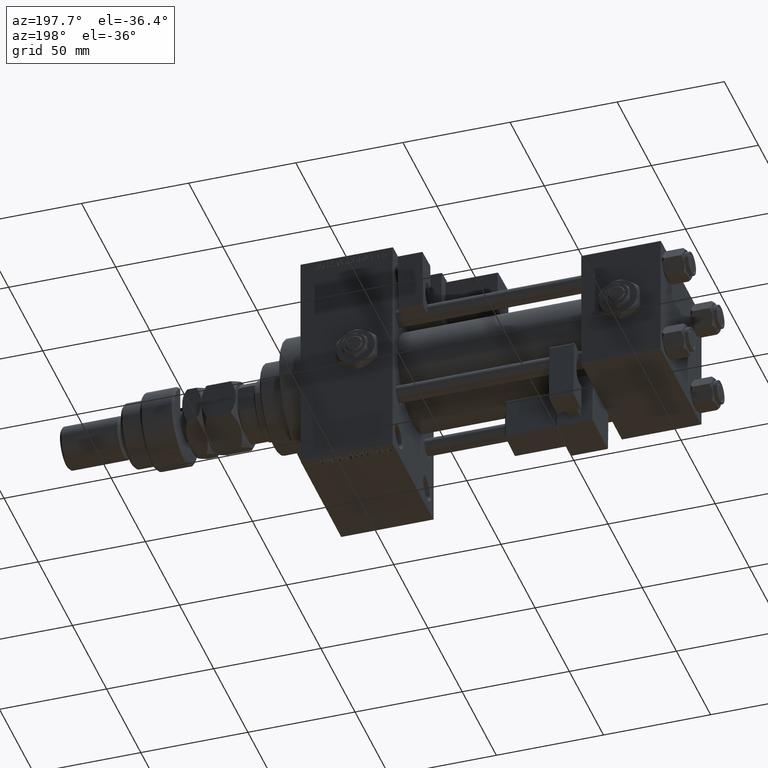
[diagram: clean part render]
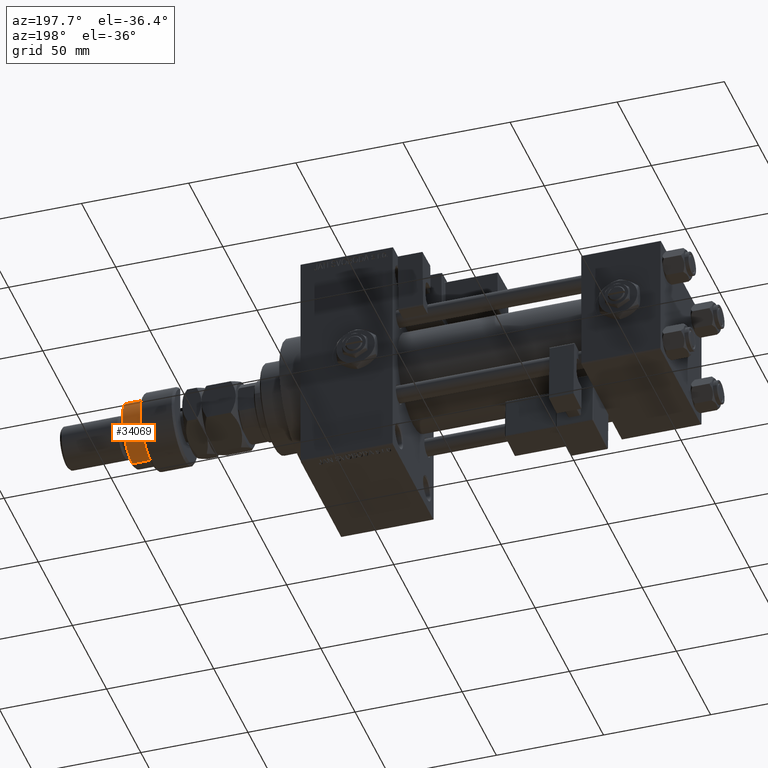
[diagram: same view with one face highlighted and labeled with its STEP entity id]
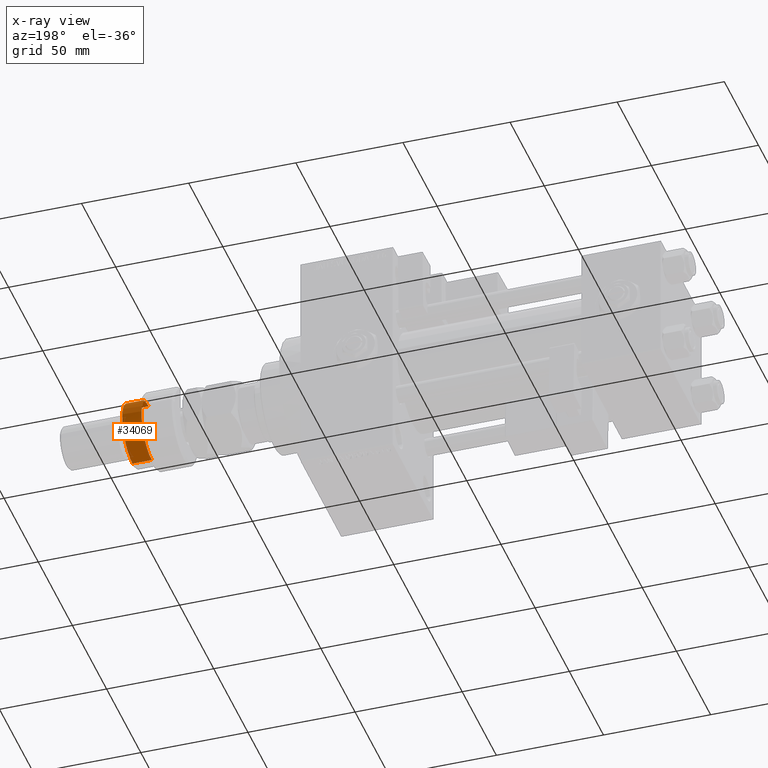
[diagram: x-ray of the same camera — body ghosted, the highlighted face saturated]
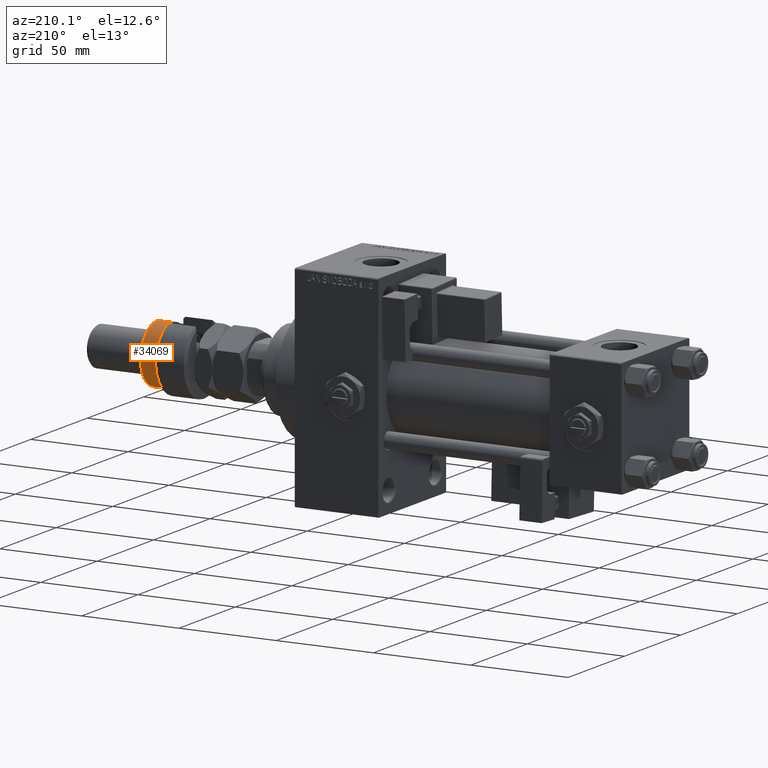
[diagram: same view with one face highlighted and labeled with its STEP entity id]
A machine part, auxiliary view. The second image highlights one B-rep face of the part: STEP entity #34069.
The next image is the same camera in x-ray: the body ghosted, the highlighted face saturated — about 0% of this face is hidden behind the body in this view.
A second angle (auxiliary view) of the same face is appended — the face is thin or edge-on in the first view.
In plain terms, the highlighted cylindrical surface (edge-blend (fillet) strip) has radius 15 mm, axis along (-1, -0, 0).
Its self-contained STEP definition (entity closure, byte-faithful):
#2290 = ORIENTED_EDGE ( 'NONE', *, *, #24684, .F. ) ;
#2796 = CARTESIAN_POINT ( 'NONE',  ( -15.00000000000000000, 0.000000000000000000, 24.99999999999997868 ) ) ;
#4188 = DIRECTION ( 'NONE',  ( 0.000000000000000000, 0.000000000000000000, -1.000000000000000000 ) ) ;
#5008 = DIRECTION ( 'NONE',  ( 1.000000000000000000, 0.000000000000000000, 0.000000000000000000 ) ) ;
#5952 = ORIENTED_EDGE ( 'NONE', *, *, #31009, .F. ) ;
#6832 = DIRECTION ( 'NONE',  ( -0.000000000000000000, -0.000000000000000000, -1.000000000000000000 ) ) ;
#8010 = VERTEX_POINT ( 'NONE', #30699 ) ;
#8079 = AXIS2_PLACEMENT_3D ( 'NONE', #45973, #41823, #37690 ) ;
#8229 = AXIS2_PLACEMENT_3D ( 'NONE', #14541, #39680, #31100 ) ;
#8839 = CIRCLE ( 'NONE', #52943, 15.00000000000000000 ) ;
#8894 = EDGE_LOOP ( 'NONE', ( #24968, #25845, #14731, #35512, #2290, #5952 ) ) ;
#9962 = DIRECTION ( 'NONE',  ( -1.000000000000000000, 0.000000000000000000, 0.000000000000000000 ) ) ;
#10195 = VERTEX_POINT ( 'NONE', #41202 ) ;
#10691 = LINE ( 'NONE', #45459, #11102 ) ;
#11102 = VECTOR ( 'NONE', #6832, 1000.000000000000000 ) ;
#12048 = DIRECTION ( 'NONE',  ( -0.000000000000000000, -0.000000000000000000, -1.000000000000000000 ) ) ;
#14333 = LINE ( 'NONE', #44432, #54096 ) ;
#14541 = CARTESIAN_POINT ( 'NONE',  ( 0.000000000000000000, 0.000000000000000000, 26.00000000000000355 ) ) ;
#14731 = ORIENTED_EDGE ( 'NONE', *, *, #43441, .T. ) ;
#15248 = CARTESIAN_POINT ( 'NONE',  ( -12.99038105676658006, 7.500000000000000000, 16.00000000000000000 ) ) ;
#15281 = VERTEX_POINT ( 'NONE', #2796 ) ;
#16200 = LINE ( 'NONE', #49889, #53112 ) ;
#16732 = CIRCLE ( 'NONE', #33474, 15.00000000000000000 ) ;
#18001 = VERTEX_POINT ( 'NONE', #19173 ) ;
#18816 = VERTEX_POINT ( 'NONE', #26965 ) ;
#19173 = CARTESIAN_POINT ( 'NONE',  ( 15.00000000000000000, 1.836970198721029589E-15, 16.00000000000000000 ) ) ;
#24684 = EDGE_CURVE ( 'NONE', #18816, #10195, #16732, .T. ) ;
#24968 = ORIENTED_EDGE ( 'NONE', *, *, #28381, .T. ) ;
#25845 = ORIENTED_EDGE ( 'NONE', *, *, #51906, .T. ) ;
#25994 = DIRECTION ( 'NONE',  ( 0.000000000000000000, 0.000000000000000000, -1.000000000000000000 ) ) ;
#26265 = CARTESIAN_POINT ( 'NONE',  ( 0.000000000000000000, 0.000000000000000000, 24.99999999999997868 ) ) ;
#26698 = FACE_OUTER_BOUND ( 'NONE', #8894, .T. ) ;
#26965 = CARTESIAN_POINT ( 'NONE',  ( -15.00000000000000000, 0.000000000000000000, 17.50000000000000000 ) ) ;
#28381 = EDGE_CURVE ( 'NONE', #15281, #8010, #8839, .T. ) ;
#30699 = CARTESIAN_POINT ( 'NONE',  ( 15.00000000000000000, 1.836970198721029589E-15, 24.99999999999997868 ) ) ;
#31009 = EDGE_CURVE ( 'NONE', #15281, #18816, #16200, .T. ) ;
#31100 = DIRECTION ( 'NONE',  ( -1.000000000000000000, 0.000000000000000000, 0.000000000000000000 ) ) ;
#33474 = AXIS2_PLACEMENT_3D ( 'NONE', #42003, #4188, #9962 ) ;
#33678 = EDGE_CURVE ( 'NONE', #41031, #10195, #14333, .T. ) ;
#34069 = ADVANCED_FACE ( 'NONE', ( #26698 ), #52126, .T. ) ;
#35512 = ORIENTED_EDGE ( 'NONE', *, *, #33678, .T. ) ;
#37690 = DIRECTION ( 'NONE',  ( 1.000000000000000000, 0.000000000000000000, 0.000000000000000000 ) ) ;
#39680 = DIRECTION ( 'NONE',  ( -0.000000000000000000, -0.000000000000000000, -1.000000000000000000 ) ) ;
#40020 = DIRECTION ( 'NONE',  ( 0.000000000000000000, 0.000000000000000000, 1.000000000000000000 ) ) ;
#41031 = VERTEX_POINT ( 'NONE', #15248 ) ;
#41202 = CARTESIAN_POINT ( 'NONE',  ( -12.99038105676658006, 7.500000000000000000, 17.50000000000000000 ) ) ;
#41823 = DIRECTION ( 'NONE',  ( 0.000000000000000000, 0.000000000000000000, 1.000000000000000000 ) ) ;
#42003 = CARTESIAN_POINT ( 'NONE',  ( 0.000000000000000000, 0.000000000000000000, 17.50000000000000000 ) ) ;
#43441 = EDGE_CURVE ( 'NONE', #18001, #41031, #47751, .T. ) ;
#44432 = CARTESIAN_POINT ( 'NONE',  ( -12.99038105676658006, 7.500000000000000000, 26.00000000000000355 ) ) ;
#45459 = CARTESIAN_POINT ( 'NONE',  ( 15.00000000000000000, 1.836970198721029589E-15, 26.00000000000000355 ) ) ;
#45973 = CARTESIAN_POINT ( 'NONE',  ( 0.000000000000000000, 0.000000000000000000, 16.00000000000000000 ) ) ;
#47751 = CIRCLE ( 'NONE', #8079, 15.00000000000000000 ) ;
#49889 = CARTESIAN_POINT ( 'NONE',  ( -15.00000000000000000, 0.000000000000000000, 26.00000000000000355 ) ) ;
#51906 = EDGE_CURVE ( 'NONE', #8010, #18001, #10691, .T. ) ;
#52126 = CYLINDRICAL_SURFACE ( 'NONE', #8229, 15.00000000000000000 ) ;
#52943 = AXIS2_PLACEMENT_3D ( 'NONE', #26265, #25994, #5008 ) ;
#53112 = VECTOR ( 'NONE', #12048, 1000.000000000000000 ) ;
#54096 = VECTOR ( 'NONE', #40020, 1000.000000000000000 ) ;